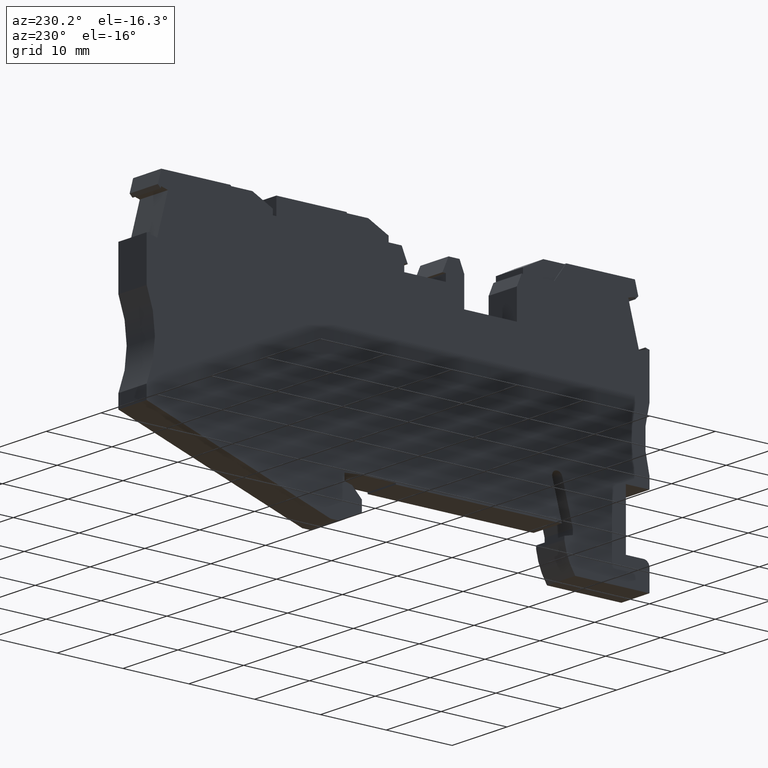
[diagram: clean part render]
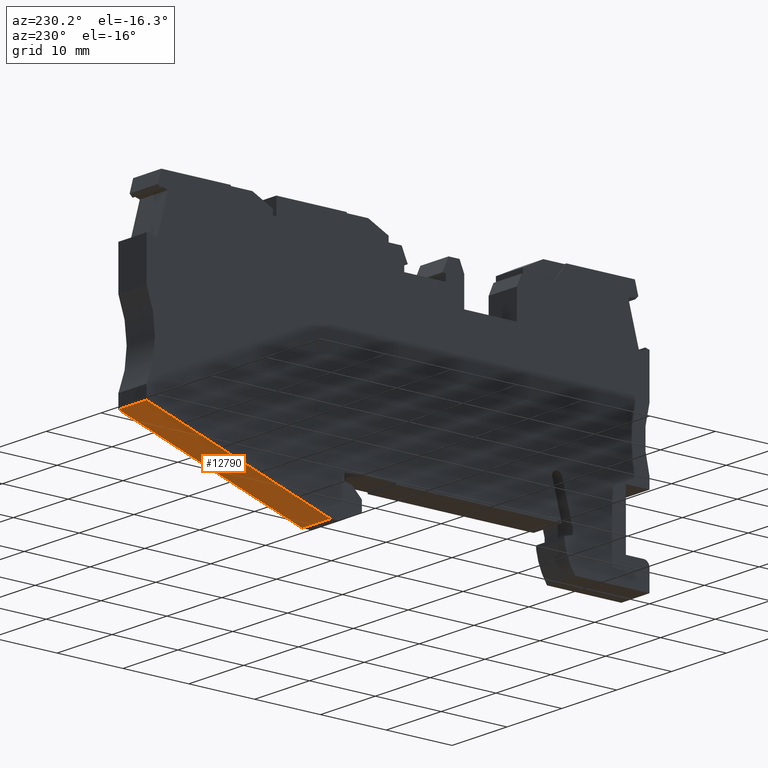
[diagram: same view with one face highlighted and labeled with its STEP entity id]
A machine part, auxiliary view. The second image highlights one B-rep face of the part: STEP entity #12790.
In plain terms, the highlighted planar face has unit normal (-0, 0.3128, -0.9498).
Its self-contained STEP definition (entity closure, byte-faithful):
#100=CARTESIAN_POINT('',(55.8575904551393,0.644290552791665,
6.47744423816412E-11));
#110=VERTEX_POINT('',#100);
#5700=CARTESIAN_POINT('',(82.4574372953319,13.1784692883342,
4.98404503491155E-11));
#5710=VERTEX_POINT('',#5700);
#5740=CARTESIAN_POINT('',(2.08721928629529E-13,-25.676500943028,
9.61346534319049E-11));
#5750=DIRECTION('',(0.904601039469269,0.426259263114737,
-5.07871522614778E-13));
#5760=VECTOR('',#5750,1.);
#5770=LINE('',#5740,#5760);
#5780=EDGE_CURVE('',#110,#5710,#5770,.T.);
#5950=CARTESIAN_POINT('',(2.08721928629529E-13,-25.676500943028,
-5.15000000009233));
#5960=DIRECTION('',(0.904601039469269,0.426259263114737,
2.93820523467048E-13));
#5970=VECTOR('',#5960,1.);
#5980=LINE('',#5950,#5970);
#5990=CARTESIAN_POINT('',(55.8575904551393,0.644290552791665,
-5.15000000007418));
#6000=VERTEX_POINT('',#5990);
#6010=CARTESIAN_POINT('',(82.4574372953319,13.1784692883342,
-5.15000000006554));
#6020=VERTEX_POINT('',#6010);
#6030=EDGE_CURVE('',#6000,#6020,#5980,.T.);
#12580=CARTESIAN_POINT('',(56.1478699221873,0.781073848766871,
-4.70734562441066E-14));
#12590=DIRECTION('',(0.426259263114737,-0.904601039469269,0.));
#12600=DIRECTION('',(-0.904601039469269,-0.426259263114737,0.));
#12610=AXIS2_PLACEMENT_3D('',#12580,#12590,#12600);
#12620=PLANE('',#12610);
#12630=CARTESIAN_POINT('',(55.8575904551393,0.644290552791661,
-8.88178419700125E-16));
#12640=DIRECTION('',(0.,0.,-1.));
#12650=VECTOR('',#12640,1.);
#12660=LINE('',#12630,#12650);
#12670=EDGE_CURVE('',#110,#6000,#12660,.T.);
#12680=ORIENTED_EDGE('',*,*,#12670,.T.);
#12690=ORIENTED_EDGE('',*,*,#5780,.F.);
#12700=CARTESIAN_POINT('',(82.4574372953319,13.1784692883342,
-8.88178419700125E-16));
#12710=DIRECTION('',(0.,0.,1.));
#12720=VECTOR('',#12710,1.);
#12730=LINE('',#12700,#12720);
#12740=EDGE_CURVE('',#6020,#5710,#12730,.T.);
#12750=ORIENTED_EDGE('',*,*,#12740,.T.);
#12760=ORIENTED_EDGE('',*,*,#6030,.T.);
#12770=EDGE_LOOP('',(#12760,#12750,#12690,#12680));
#12780=FACE_OUTER_BOUND('',#12770,.T.);
#12790=ADVANCED_FACE('',(#12780),#12620,.T.);